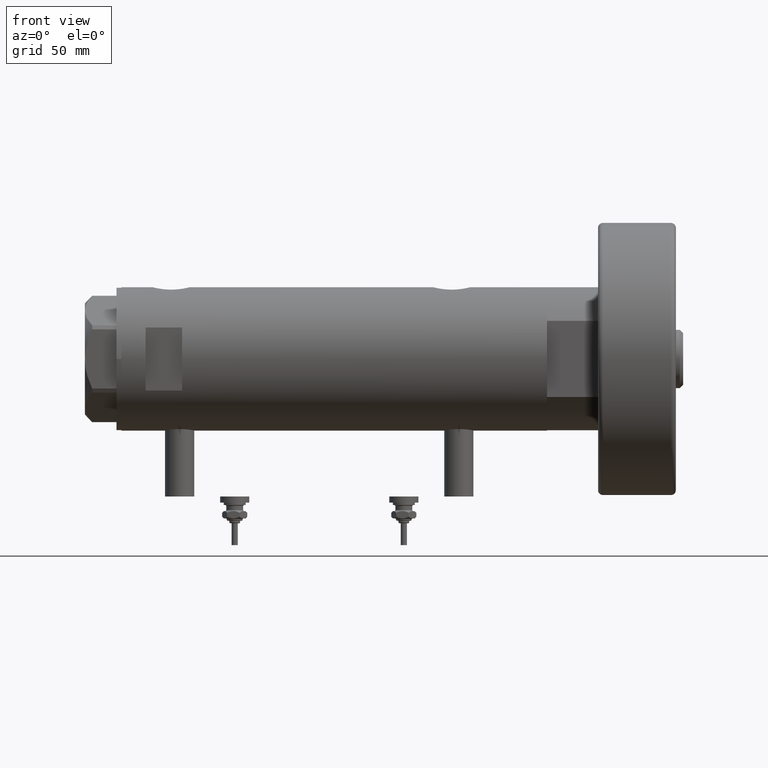
[diagram: clean part render]
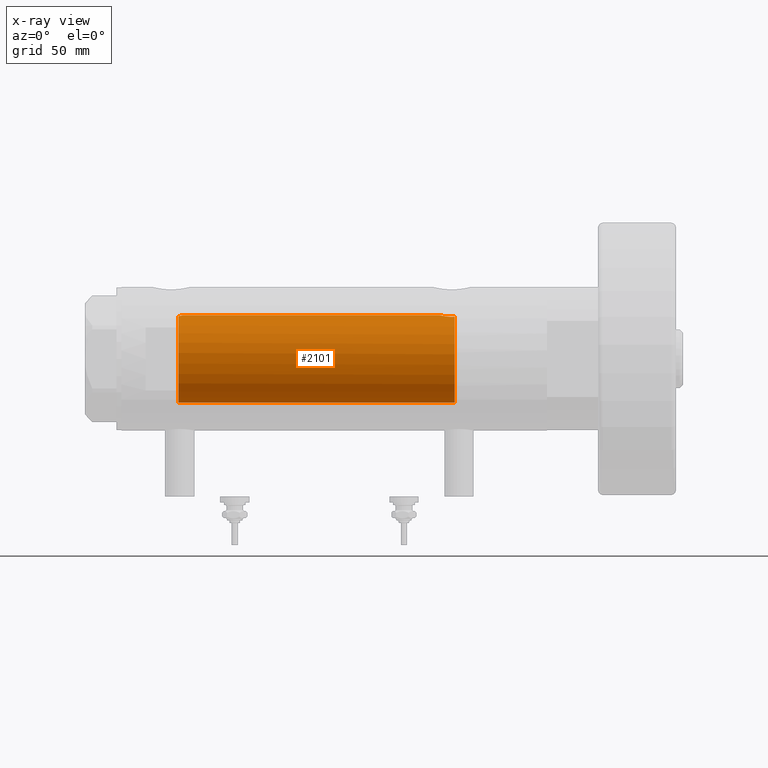
[diagram: x-ray — body ghosted, one internal face saturated and labeled with its STEP entity id]
A machine part, front view, then the same camera in x-ray: the body is ghosted and one INTERNAL B-rep face — a face not visible from any outside direction — is saturated and labeled: STEP entity #2101.
In plain terms, the highlighted cylindrical surface (partial cylindrical patch) has radius 18 mm, axis along (1, 0, -0).
Its self-contained STEP definition (entity closure, byte-faithful):
#23 = EDGE_CURVE ( 'NONE', #2123, #600, #3694, .T. ) ;
#239 = CARTESIAN_POINT ( 'NONE',  ( 17.37157951943345680, -4.714681855650495912, -49.60000000000000142 ) ) ;
#370 = DIRECTION ( 'NONE',  ( -0.000000000000000000, -0.000000000000000000, -1.000000000000000000 ) ) ;
#388 = CARTESIAN_POINT ( 'NONE',  ( 17.94411621822183633, -1.462318180775788568, -43.74532018047459303 ) ) ;
#600 = VERTEX_POINT ( 'NONE', #4539 ) ;
#615 = CARTESIAN_POINT ( 'NONE',  ( 18.00000000000000000, 0.000000000000000000, 62.23499999999999233 ) ) ;
#717 = CARTESIAN_POINT ( 'NONE',  ( 17.91197612045793619, -1.808534151376000265, 62.56883769349537516 ) ) ;
#773 = CYLINDRICAL_SURFACE ( 'NONE', #1642, 18.00000000000000000 ) ;
#797 = VERTEX_POINT ( 'NONE', #6075 ) ;
#863 = EDGE_CURVE ( 'NONE', #797, #2201, #1299, .T. ) ;
#866 = CARTESIAN_POINT ( 'NONE',  ( 17.98578085412773220, -0.7388632979187831351, -43.58783263922211404 ) ) ;
#922 = CARTESIAN_POINT ( 'NONE',  ( 17.37991340314490785, -4.684530256828848493, -47.03638461192320364 ) ) ;
#953 = ORIENTED_EDGE ( 'NONE', *, *, #3953, .T. ) ;
#1112 = CARTESIAN_POINT ( 'NONE',  ( 17.68806959355791619, -3.349106256179494423, 63.55213344176306833 ) ) ;
#1223 = CARTESIAN_POINT ( 'NONE',  ( 17.32819690210315855, -4.871720223791778714, -48.13420793424216981 ) ) ;
#1247 = DIRECTION ( 'NONE',  ( -1.000000000000000000, 0.000000000000000000, 0.000000000000000000 ) ) ;
#1299 = LINE ( 'NONE', #1399, #4418 ) ;
#1324 = FACE_OUTER_BOUND ( 'NONE', #1802, .T. ) ;
#1388 = CARTESIAN_POINT ( 'NONE',  ( 17.63516507807922906, -3.613050995810182631, -45.12150009659158201 ) ) ;
#1399 = CARTESIAN_POINT ( 'NONE',  ( -18.00000000000000000, 0.000000000000000000, 87.59999999999998010 ) ) ;
#1418 = CARTESIAN_POINT ( 'NONE',  ( 17.83055549281852237, -2.468946622824478077, -44.20402443991358865 ) ) ;
#1619 = DIRECTION ( 'NONE',  ( 0.000000000000000000, 0.000000000000000000, -1.000000000000000000 ) ) ;
#1642 = AXIS2_PLACEMENT_3D ( 'NONE', #2279, #370, #6209 ) ;
#1661 = ORIENTED_EDGE ( 'NONE', *, *, #23, .F. ) ;
#1740 = CARTESIAN_POINT ( 'NONE',  ( 18.00000000000000355, -0.3730735969061040325, 62.23499999999998522 ) ) ;
#1802 = EDGE_LOOP ( 'NONE', ( #4685, #953, #1661, #1908, #3313, #5950 ) ) ;
#1816 = CARTESIAN_POINT ( 'NONE',  ( 17.53680980608543649, -4.063678955652867408, -45.70014584461345919 ) ) ;
#1840 = VECTOR ( 'NONE', #2917, 1000.000000000000000 ) ;
#1908 = ORIENTED_EDGE ( 'NONE', *, *, #4577, .T. ) ;
#2093 = CARTESIAN_POINT ( 'NONE',  ( 17.83332390923721533, -2.466220319593701138, 62.89048875048365517 ) ) ;
#2101 = ADVANCED_FACE ( 'NONE', ( #1324 ), #773, .F. ) ;
#2119 = CARTESIAN_POINT ( 'NONE',  ( 17.98842269988416831, -0.7385803848020507933, 62.27734794098787319 ) ) ;
#2123 = VERTEX_POINT ( 'NONE', #5194 ) ;
#2175 = CARTESIAN_POINT ( 'NONE',  ( 17.34665145232710515, -4.806531086046565981, -49.23913341666350618 ) ) ;
#2201 = VERTEX_POINT ( 'NONE', #4913 ) ;
#2269 = CARTESIAN_POINT ( 'NONE',  ( 17.76113839466168187, -2.926207082530021264, -44.50911996042638208 ) ) ;
#2279 = CARTESIAN_POINT ( 'NONE',  ( 0.000000000000000000, 0.000000000000000000, 87.59999999999998010 ) ) ;
#2330 = CARTESIAN_POINT ( 'NONE',  ( 17.91207243579358632, -1.808254927071297313, -43.86838658940776980 ) ) ;
#2633 = CARTESIAN_POINT ( 'NONE',  ( 0.000000000000000000, 0.000000000000000000, 64.09999999999999432 ) ) ;
#2668 = DIRECTION ( 'NONE',  ( 0.000000000000000000, 0.000000000000000000, 1.000000000000000000 ) ) ;
#2877 = CARTESIAN_POINT ( 'NONE',  ( 17.99999999999999645, -0.1843597763241263676, -43.53499999999998948 ) ) ;
#2917 = DIRECTION ( 'NONE',  ( -0.000000000000000000, -0.000000000000000000, -1.000000000000000000 ) ) ;
#3160 = CARTESIAN_POINT ( 'NONE',  ( 17.58783030962034033, -3.829911878881809173, 64.09999999999999432 ) ) ;
#3162 = CARTESIAN_POINT ( 'NONE',  ( 17.94467453319816030, -1.455166008437397629, 62.44318072553842569 ) ) ;
#3176 = CARTESIAN_POINT ( 'NONE',  ( 17.33821808943283216, -4.836569767017236288, -47.75823404381377202 ) ) ;
#3225 = EDGE_CURVE ( 'NONE', #5453, #6161, #3238, .T. ) ;
#3238 = B_SPLINE_CURVE_WITH_KNOTS ( 'NONE', 3,
 ( #6053, #1740, #2119, #3162, #717, #2093, #5479, #1112, #4651, #5605 ),
 .UNSPECIFIED., .F., .F.,
 ( 4, 2, 2, 2, 4 ),
 ( 0.000000000000000000, 0.001102956581910070682, 0.002205913163820141798, 0.003308869745730213564, 0.004411826327640285331 ),
 .UNSPECIFIED. ) ;
#3313 = ORIENTED_EDGE ( 'NONE', *, *, #863, .F. ) ;
#3349 = CARTESIAN_POINT ( 'NONE',  ( 17.68752450041759516, -3.351772203450730458, -44.85493447381011833 ) ) ;
#3422 = LINE ( 'NONE', #5260, #1840 ) ;
#3521 = AXIS2_PLACEMENT_3D ( 'NONE', #3628, #1619, #1247 ) ;
#3628 = CARTESIAN_POINT ( 'NONE',  ( 0.000000000000000000, 0.000000000000000000, -49.60000000000000853 ) ) ;
#3694 = B_SPLINE_CURVE_WITH_KNOTS ( 'NONE', 3,
 ( #239, #2175, #4163, #1223, #3176, #922, #4359, #5817, #1816, #1388, #3349, #2269, #4294, #1418, #3799, #2330, #388, #5715, #866, #4756, #2877, #6200 ),
 .UNSPECIFIED., .F., .F.,
 ( 4, 2, 2, 2, 2, 2, 2, 2, 2, 2, 4 ),
 ( 0.006434066725458738659, 0.007540005695425722881, 0.008645944665392707104, 0.009751883635359691327, 0.01085782260532667555, 0.01196376157529365977, 0.01251673106027715102, 0.01306970054526064226, 0.01417563951522762475, 0.01472860900021111773, 0.01528157848519461244 ),
 .UNSPECIFIED. ) ;
#3799 = CARTESIAN_POINT ( 'NONE',  ( 17.85233710017094566, -2.306965814323738595, -44.11276266371618249 ) ) ;
#3953 = EDGE_CURVE ( 'NONE', #5453, #600, #3422, .T. ) ;
#4163 = CARTESIAN_POINT ( 'NONE',  ( 17.33258131920085177, -4.856098292894137636, -48.87181853595665615 ) ) ;
#4240 = CIRCLE ( 'NONE', #3521, 18.00000000000000000 ) ;
#4253 = CIRCLE ( 'NONE', #5032, 18.00000000000000000 ) ;
#4294 = CARTESIAN_POINT ( 'NONE',  ( 17.78501549309440222, -2.778062367771706231, -44.40196575702887571 ) ) ;
#4337 = DIRECTION ( 'NONE',  ( -0.000000000000000000, -0.000000000000000000, -1.000000000000000000 ) ) ;
#4359 = CARTESIAN_POINT ( 'NONE',  ( 17.41145422212636618, -4.568075757751900667, -46.68573299053986148 ) ) ;
#4418 = VECTOR ( 'NONE', #4337, 1000.000000000000000 ) ;
#4539 = CARTESIAN_POINT ( 'NONE',  ( 18.00000000000000000, 5.958021437579254357E-16, -43.53499999999999659 ) ) ;
#4577 = EDGE_CURVE ( 'NONE', #2123, #2201, #4240, .T. ) ;
#4614 = DIRECTION ( 'NONE',  ( 1.000000000000000000, 0.000000000000000000, 0.000000000000000000 ) ) ;
#4651 = CARTESIAN_POINT ( 'NONE',  ( 17.63693340989345515, -3.604419224588179649, 63.81212766824007332 ) ) ;
#4685 = ORIENTED_EDGE ( 'NONE', *, *, #3225, .F. ) ;
#4756 = CARTESIAN_POINT ( 'NONE',  ( 17.99716838826709520, -0.3690012331666944201, -43.54544422515623836 ) ) ;
#4913 = CARTESIAN_POINT ( 'NONE',  ( -18.00000000000000000, 0.000000000000000000, -49.60000000000000853 ) ) ;
#5032 = AXIS2_PLACEMENT_3D ( 'NONE', #2633, #2668, #4614 ) ;
#5194 = CARTESIAN_POINT ( 'NONE',  ( 17.37157951943345680, -4.714681855650495912, -49.60000000000000142 ) ) ;
#5260 = CARTESIAN_POINT ( 'NONE',  ( 18.00000000000000000, 2.204364238465235428E-15, 87.59999999999998010 ) ) ;
#5368 = EDGE_CURVE ( 'NONE', #797, #6161, #4253, .T. ) ;
#5453 = VERTEX_POINT ( 'NONE', #615 ) ;
#5479 = CARTESIAN_POINT ( 'NONE',  ( 17.78689333688353358, -2.776822659814067507, 63.08837617090291872 ) ) ;
#5605 = CARTESIAN_POINT ( 'NONE',  ( 17.58783030962034033, -3.829911878881809173, 64.09999999999999432 ) ) ;
#5715 = CARTESIAN_POINT ( 'NONE',  ( 17.97721305204034792, -0.9231636963562631637, -43.61982822371822266 ) ) ;
#5817 = CARTESIAN_POINT ( 'NONE',  ( 17.49057517990651078, -4.255095079290335924, -46.01249222525177629 ) ) ;
#5950 = ORIENTED_EDGE ( 'NONE', *, *, #5368, .T. ) ;
#6053 = CARTESIAN_POINT ( 'NONE',  ( 18.00000000000000000, 0.000000000000000000, 62.23499999999999233 ) ) ;
#6075 = CARTESIAN_POINT ( 'NONE',  ( -18.00000000000000000, 0.000000000000000000, 64.09999999999999432 ) ) ;
#6161 = VERTEX_POINT ( 'NONE', #3160 ) ;
#6200 = CARTESIAN_POINT ( 'NONE',  ( 18.00000000000000000, 5.958021437579254357E-16, -43.53499999999999659 ) ) ;
#6209 = DIRECTION ( 'NONE',  ( -1.000000000000000000, 0.000000000000000000, 0.000000000000000000 ) ) ;